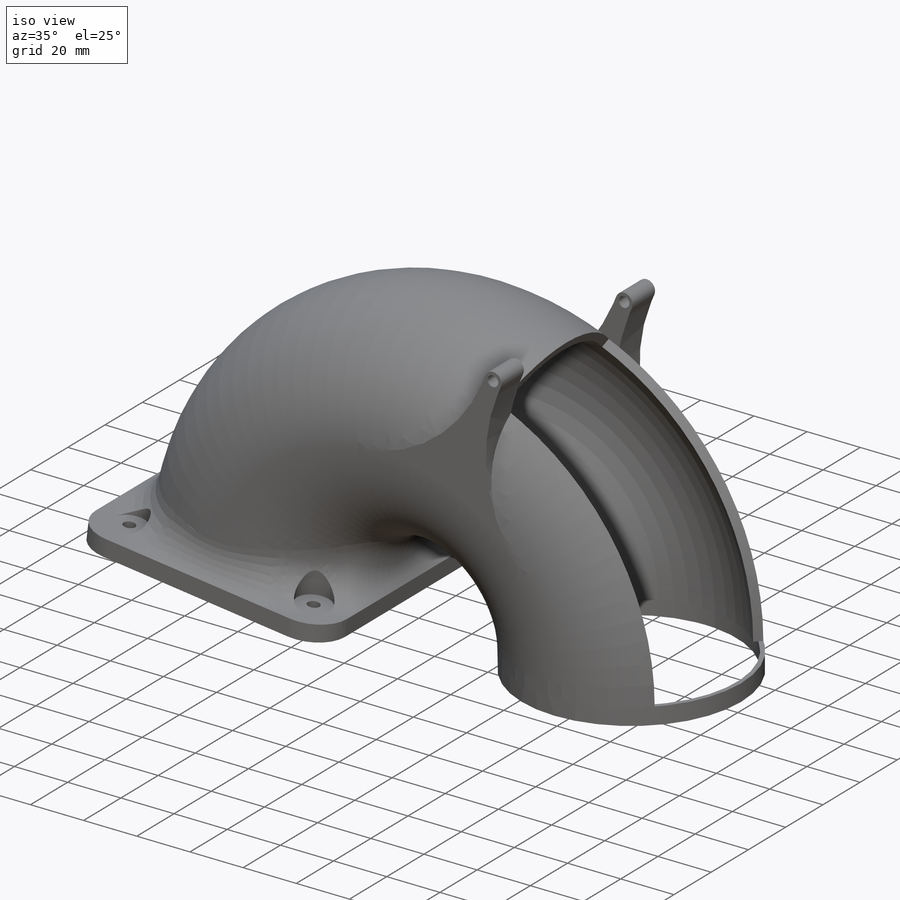
[diagram: iso view]
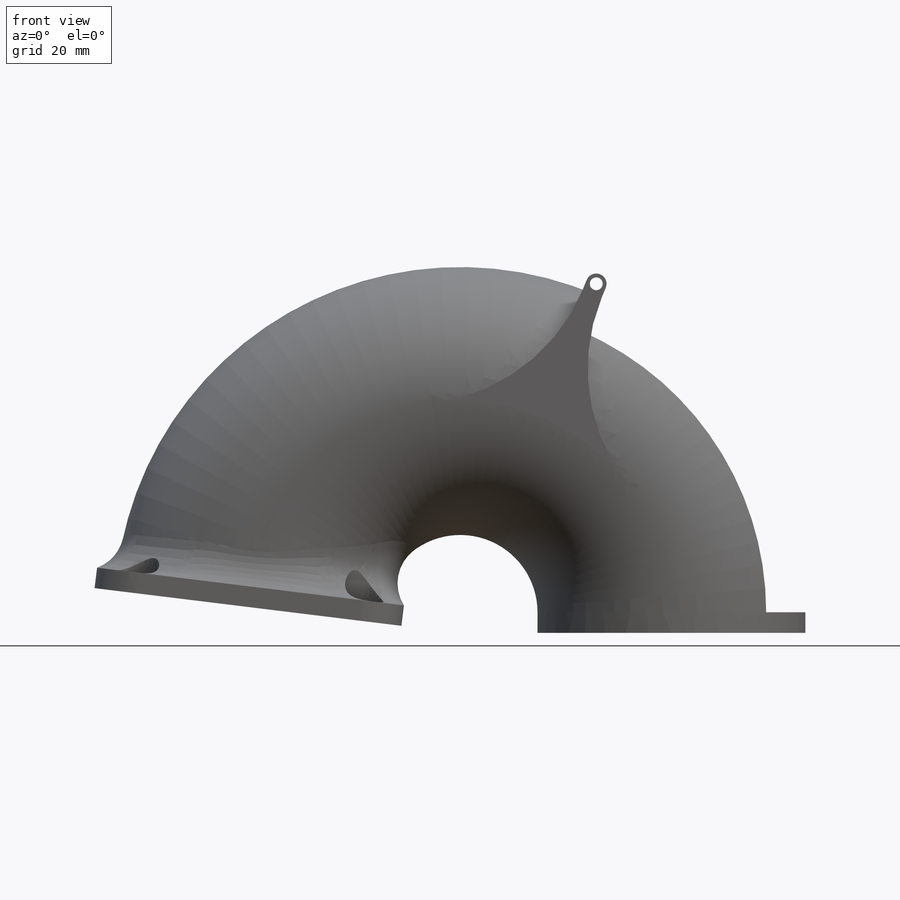
[diagram: front view]
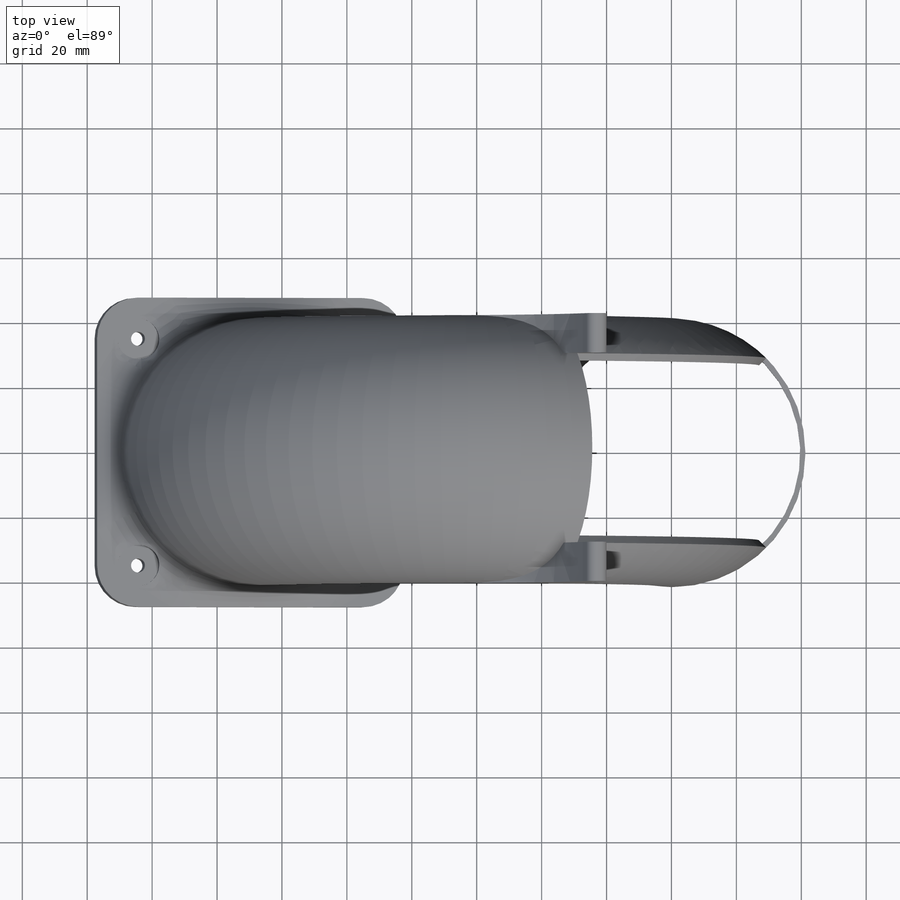
[diagram: top view]
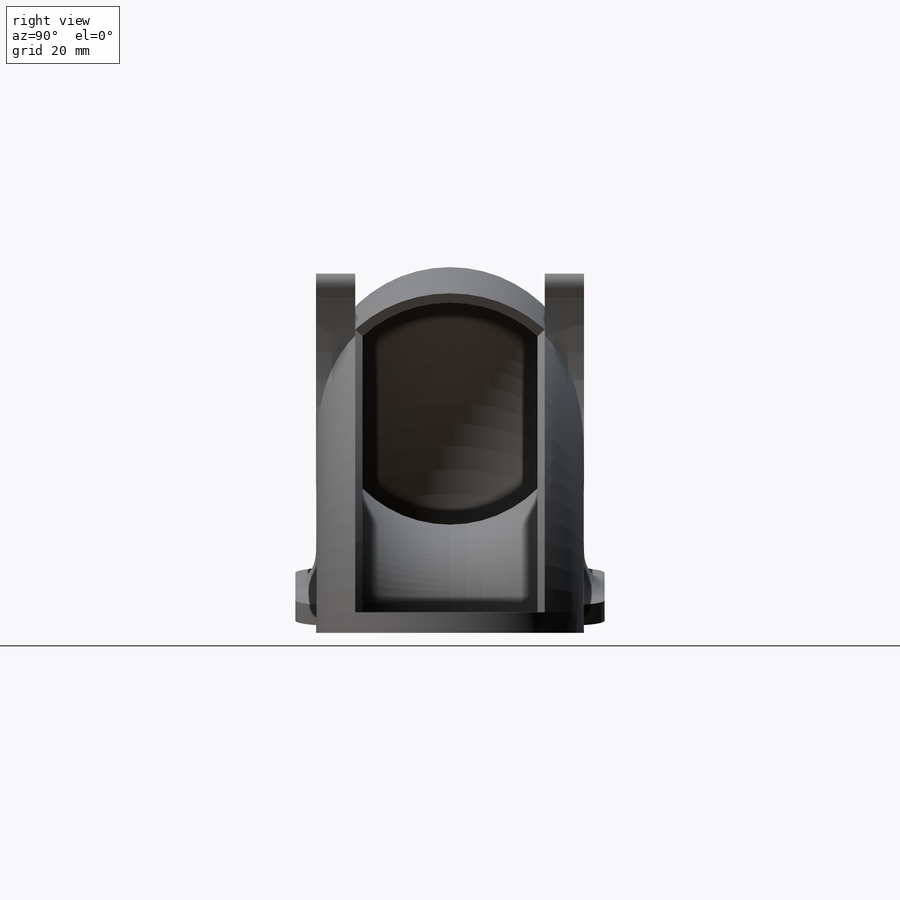
[diagram: right view]
SOLIDWORKS PART (.sldprt)
format: sldprt  version: not decoded by parser v0  size: 521,728 bytes
history: native  units: mm
features: sketch x8, cut_revolve x4, extrude x3, material x1, revolve x1, plane x1, fillet x1, pattern_circular x1 (+13 scaffold rows collapsed)
feature tree (33):
  scaffold x13  (default folders/planes/origin — collapsed)
  material  "Material <not specified>"
  sketch  "Sketch1"  dims[D1=76.2mm D3=65.0875mm D2=3.175mm]
  revolve  "Revolve1"  Angle=173deg
  sketch  "Sketch2"  dims[D1=79.375mm]
  extrude  "Boss-Extrude1"  Depth=6.35mm
  sketch  "Sketch5"  dims[c1.D2=~3.96875mm c1.D1=114.3mm c1.D4=114.3mm c2.D1=3.175mm c2.D3=41.275mm]
  extrude  "Boss-Extrude3"  [1 undecoded]
  sketch  "Sketch4"  dims[c1.D3=38.1mm c1.D1=~64.061895mm c2.D1=45.0deg c2.D2=~64.061895mm c3.D2=45.0deg]
  cut_revolve  "Cut-Revolve1"  Angle=67.5deg
  sketch  "Sketch7"
  cut_revolve  "Cut-Revolve2"  Angle=173deg
  sketch  "Sketch8"
  cut_revolve  "Cut-Revolve3"  Angle=5deg
  sketch  "Sketch9"  dims[c1.D3=~6.39866mm c1.D4=4.318mm c1.D5=12.7mm c1.D1=95.25mm c1.D2=95.25mm c2.D3=34.925mm c2.D6=4.0]
  extrude  "Boss-Extrude4"  Depth=6.35mm
  plane  "Plane1"
  sketch  "Sketch10"  dims[D1=6.35mm]
  fillet  "Fillet1"  Radius=12.7mm
  cut_revolve  "Cut-Revolve6"  Angle=360deg
  pattern_circular  "CirPattern1"  Count=4 Angle=360deg
decode coverage: 15 of 18 modeling features carry decoded parameters
note: ~ marks probable driven/reference dimensions
note: 1 parameter value undecoded
note: suppression state not decoded; provenance and decode notes live in map.json
